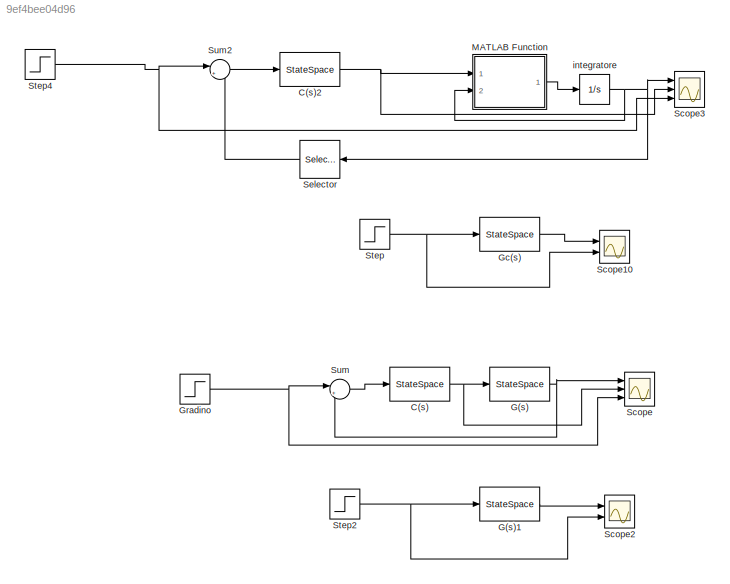
MODEL slx_9ef4bee04d96
KIND model
CONFIG AbsTol = auto
CONFIG EnableMultiTasking = off
CONFIG FixedStep = auto
CONFIG MaxStep = auto
CONFIG MinStep = auto
CONFIG RelTol = 1e-3
CONFIG SampleTimeConstraint = Unconstrained
CONFIG SolverName = VariableStepAuto
CONFIG StartTime = 0.0
CONFIG StopTime = 100
BLOCK [StateSpace] C(s)
  A = Cc.A
  B = Cc.B
  C = Cc.C
  D = Cc.D
  InitialCondition = 0
  Ports = [1, 1]
BLOCK [StateSpace] C(s)2
  A = Cc.A
  B = Cc.B
  C = Cc.C
  D = Cc.D
  InitialCondition = 0
  Ports = [1, 1]
BLOCK [StateSpace] G(s)
  A = sys.A
  B = sys.B
  C = sys.C
  D = sys.D
  InitialCondition = 0
  Ports = [1, 1]
BLOCK [StateSpace] G(s)1
  A = sys.A
  B = sys.B
  C = sys.C
  D = sys.D
  InitialCondition = 0
  Ports = [1, 1]
BLOCK [StateSpace] Gc(s)
  A = Gc.A
  B = Gc.B
  C = Gc.C
  D = Gc.D
  InitialCondition = 0
  Ports = [1, 1]
BLOCK [Step] Gradino
  SampleTime = 0
  Time = 0
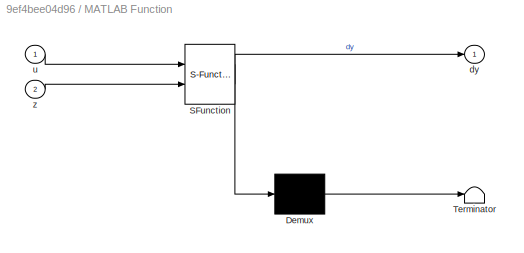
BLOCK [SubSystem] MATLAB Function
  ErrorFcn = Stateflow.Translate.translate
  PermitHierarchicalResolution = ExplicitOnly
  Ports = [2, 1]
  RequestExecContextInheritance = off
  SFBlockType = MATLAB Function
  TreatAsAtomicUnit = on
BLOCK [Demux] MATLAB Function/ Demux 
  Outputs = 1
  Ports = [1, 1]
BLOCK [S-Function] MATLAB Function/ SFunction 
  EnableBusSupport = on
  FunctionName = sf_sfun
  PortCounts = [2 2]
  Ports = [2, 2]
  SFcnIsStateOwnerBlock = off
  SFunctionDeploymentMode = off
  Tag = Stateflow S-Function 2
BLOCK [Terminator] MATLAB Function/ Terminator 
BLOCK [Outport] MATLAB Function/dy
BLOCK [Inport] MATLAB Function/u
BLOCK [Inport] MATLAB Function/z
  Port = 2
BLOCK [Scope] Scope
  Floating = off
  NumInputPorts = 3
  Ports = [3]
  ScopeSpecificationString = Simulink.scopes.TimeScopeBlockCfg('CurrentConfiguration', extmgr.ConfigurationSet(extmgr.Configuration('Core','General UI',true,'FigureColor',[1 1 1]),extmgr.Configuration('Core','Source UI',true),extmgr.Configuration('Sources','WiredSimulink',true,'DataLoggingVariableName','ScopeData1'),extmgr.Configuration('Visuals','Time Domain',true,'SerializedDisplays',{struct('MinYLimReal','-0.41174','MaxYLi...<+3114ch>
BLOCK [Scope] Scope10
  Floating = off
  NumInputPorts = 2
  Ports = [2]
  ScopeSpecificationString = Simulink.scopes.TimeScopeBlockCfg('CurrentConfiguration', extmgr.ConfigurationSet(extmgr.Configuration('Core','General UI',true),extmgr.Configuration('Core','Source UI',true),extmgr.Configuration('Sources','WiredSimulink',true),extmgr.Configuration('Visuals','Time Domain',true,'SerializedDisplays',{struct('MinYLimReal','-0.41158','MaxYLimReal','1.16019','YLabelReal','','MinYLimMag','0.00000','MaxY...<+1744ch>
BLOCK [Scope] Scope2
  Floating = off
  NumInputPorts = 2
  Ports = [2]
  ScopeSpecificationString = Simulink.scopes.TimeScopeBlockCfg('CurrentConfiguration', extmgr.ConfigurationSet(extmgr.Configuration('Core','General UI',true),extmgr.Configuration('Core','Source UI',true),extmgr.Configuration('Sources','WiredSimulink',true,'DataLoggingVariableName','ScopeData2'),extmgr.Configuration('Visuals','Time Domain',true,'SerializedDisplays',{struct('MinYLimReal','-0.66692','MaxYLimReal','1.18521','YLab...<+1428ch>
BLOCK [Scope] Scope3
  Floating = off
  NumInputPorts = 3
  Ports = [3]
  ScopeSpecificationString = Simulink.scopes.TimeScopeBlockCfg('CurrentConfiguration', extmgr.ConfigurationSet(extmgr.Configuration('Core','General UI',true,'FigureColor',[1 1 1]),extmgr.Configuration('Core','Source UI',true),extmgr.Configuration('Sources','WiredSimulink',true,'DataLoggingVariableName','ScopeData1'),extmgr.Configuration('Visuals','Time Domain',true,'SerializedDisplays',{struct('MinYLimReal','-0.34566','MaxYLi...<+3751ch>
BLOCK [Selector] Selector
  IndexOptions = Index vector (dialog)
  Indices = [1]
  InputPortWidth = 4
  OutputSizes = 1
  Ports = [1, 1]
BLOCK [Step] Step
  SampleTime = 0
BLOCK [Step] Step2
  SampleTime = 0
BLOCK [Step] Step4
  SampleTime = 0
BLOCK [Sum] Sum
  Inputs = |+-
  Ports = [2, 1]
BLOCK [Sum] Sum2
  Inputs = |+-
  Ports = [2, 1]
BLOCK [Integrator] integratore
  Ports = [1, 1]
NET C(s)2:1 -> MATLAB Function:1, Scope3:2
NET C(s):1 -> G(s):1, Scope:2
LINE G(s)1:1 -> Scope2:1
NET G(s):1 -> Scope:1, Sum:2
LINE Gc(s):1 -> Scope10:1
NET Gradino:1 -> Scope:3, Sum:1
LINE MATLAB Function:1 -> integratore:1
LINE Selector:1 -> Sum2:2
NET Step2:1 -> G(s)1:1, Scope2:2
NET Step4:1 -> Scope3:3, Sum2:1
NET Step:1 -> Gc(s):1, Scope10:2
LINE Sum2:1 -> C(s)2:1
LINE Sum:1 -> C(s):1
NET integratore:1 -> MATLAB Function:2, Scope3:1, Selector:1
note: NET lines group one-source signal fan-out (src -> all destinations, sorted); 1:1 wires keep LINE
CHART MATLAB Function states=1 transitions=1
  STATE_LABEL 'eML_blk_kernel()'
  STATE_LABEL 'SCRIPT:\nfunction dy = sistema(u, z)\n    %Parametri\n    kteta = 143;\n    kr = 168;\n    b = 1.2;\n   % teta = pi/6;\n    B = 20;\n   % F = -kteta/(2*b); \n   theta_sign = pi/6\n    F_sign = -(kteta*sin(theta_sign))/b;\n    FL=(F_sign*cos(theta_sign)-B)/sin(theta_sign);\n    kzeta = 133;\n    M = 580;\n    J = 560;\n     %stati\n    x = z(1);\n    v = z(2);\n    theta = z(3);\n    omega = z(4);\n    %Ingressi\n    f...<+254ch>'
CHART  states=0 transitions=0
